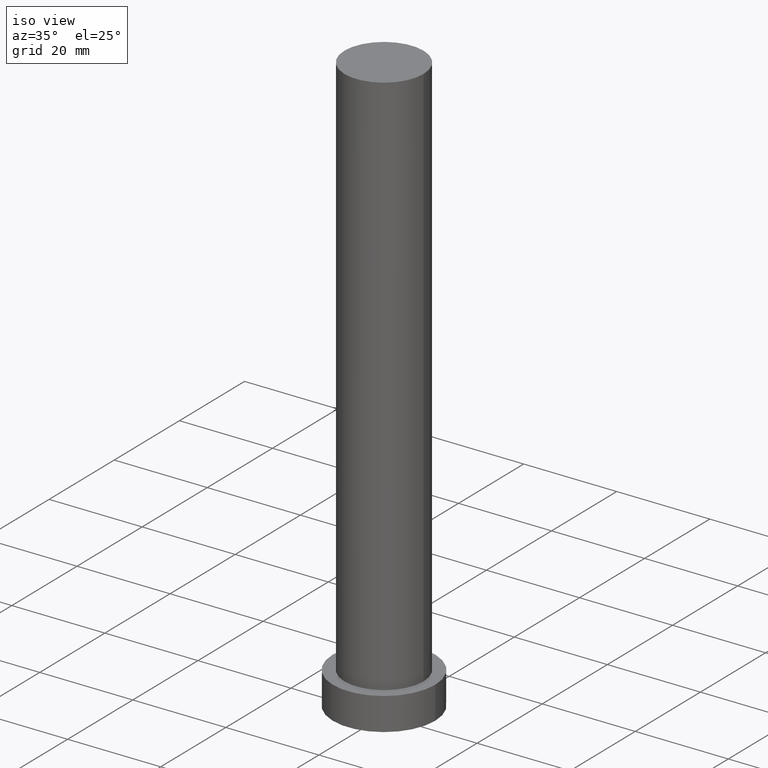
[diagram: clean part render]
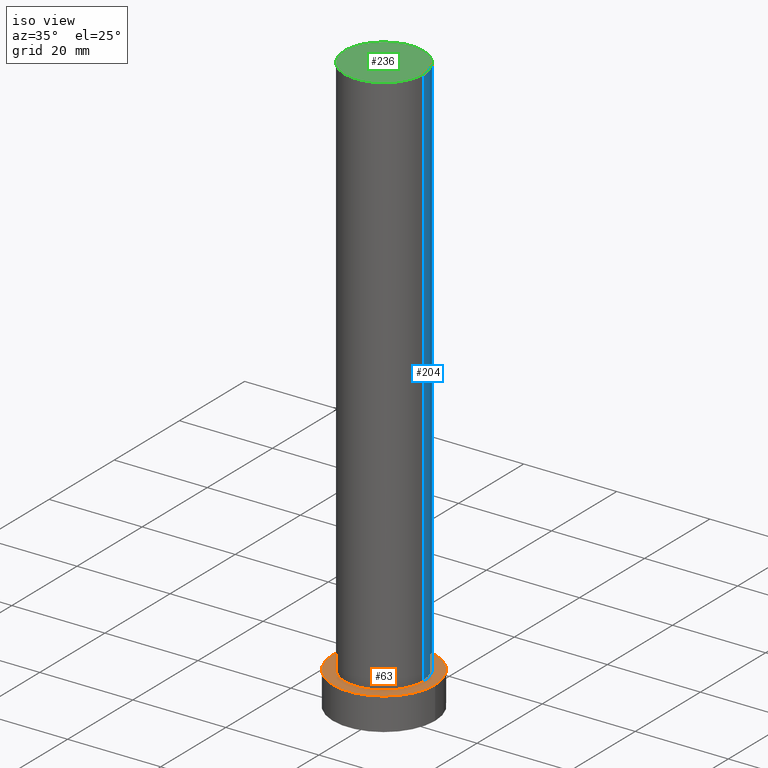
[diagram: same view with three faces highlighted in distinct colors, each labeled with its STEP entity id]
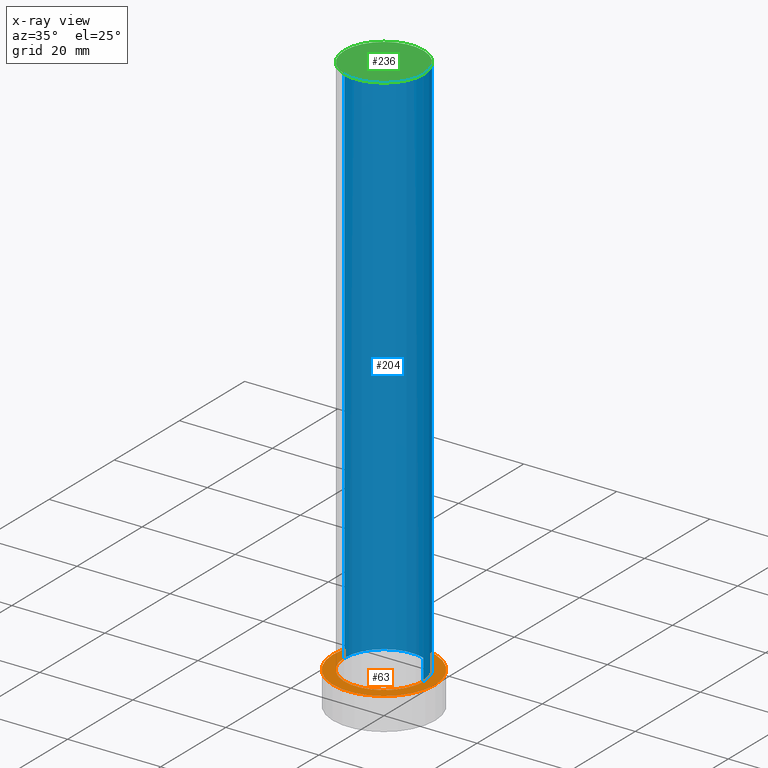
[diagram: x-ray of the same camera — body ghosted, the three highlighted faces saturated]
A machine part, iso view with three faces highlighted in distinct colors.
The next image is the same camera in x-ray (body ghosted, the three faces saturated) — at least one of them is partly hidden behind the body in this view.
Their STEP definitions:

[orange] entity #63 — the highlighted planar face has unit normal (0, 0, 1).
#1 = CARTESIAN_POINT ( 'NONE',  ( 8.500000000000000000, 1.040949779275250140E-15, 7.000000000000000000 ) ) ;
#8 = DIRECTION ( 'NONE',  ( 0.000000000000000000, 0.000000000000000000, 1.000000000000000000 ) ) ;
#23 = VERTEX_POINT ( 'NONE', #1 ) ;
#41 = DIRECTION ( 'NONE',  ( 0.000000000000000000, 0.000000000000000000, 1.000000000000000000 ) ) ;
#44 = ORIENTED_EDGE ( 'NONE', *, *, #201, .F. ) ;
#47 = CARTESIAN_POINT ( 'NONE',  ( 0.000000000000000000, 0.000000000000000000, 7.000000000000000000 ) ) ;
#54 = CIRCLE ( 'NONE', #220, 8.500000000000000000 ) ;
#56 = PLANE ( 'NONE',  #107 ) ;
#63 = ADVANCED_FACE ( 'NONE', ( #213, #93 ), #56, .T. ) ;
#66 = CIRCLE ( 'NONE', #132, 8.500000000000000000 ) ;
#68 = DIRECTION ( 'NONE',  ( 1.000000000000000000, 0.000000000000000000, 0.000000000000000000 ) ) ;
#69 = AXIS2_PLACEMENT_3D ( 'NONE', #177, #41, #251 ) ;
#70 = VERTEX_POINT ( 'NONE', #240 ) ;
#80 = VERTEX_POINT ( 'NONE', #253 ) ;
#85 = CARTESIAN_POINT ( 'NONE',  ( 0.000000000000000000, 0.000000000000000000, 7.000000000000000000 ) ) ;
#93 = FACE_OUTER_BOUND ( 'NONE', #254, .T. ) ;
#107 = AXIS2_PLACEMENT_3D ( 'NONE', #135, #217, #115 ) ;
#115 = DIRECTION ( 'NONE',  ( 1.000000000000000000, 0.000000000000000000, -0.000000000000000000 ) ) ;
#116 = CIRCLE ( 'NONE', #246, 11.00000000000000000 ) ;
#119 = EDGE_CURVE ( 'NONE', #70, #80, #128, .T. ) ;
#127 = CARTESIAN_POINT ( 'NONE',  ( 0.000000000000000000, 0.000000000000000000, 7.000000000000000000 ) ) ;
#128 = CIRCLE ( 'NONE', #69, 11.00000000000000000 ) ;
#132 = AXIS2_PLACEMENT_3D ( 'NONE', #85, #185, #68 ) ;
#135 = CARTESIAN_POINT ( 'NONE',  ( 0.000000000000000000, 0.000000000000000000, 7.000000000000000000 ) ) ;
#145 = ORIENTED_EDGE ( 'NONE', *, *, #198, .F. ) ;
#148 = DIRECTION ( 'NONE',  ( 0.000000000000000000, 0.000000000000000000, 1.000000000000000000 ) ) ;
#154 = EDGE_LOOP ( 'NONE', ( #44, #145 ) ) ;
#159 = VERTEX_POINT ( 'NONE', #167 ) ;
#167 = CARTESIAN_POINT ( 'NONE',  ( -8.500000000000000000, 0.000000000000000000, 7.000000000000000000 ) ) ;
#177 = CARTESIAN_POINT ( 'NONE',  ( 0.000000000000000000, 0.000000000000000000, 7.000000000000000000 ) ) ;
#185 = DIRECTION ( 'NONE',  ( 0.000000000000000000, 0.000000000000000000, 1.000000000000000000 ) ) ;
#195 = EDGE_CURVE ( 'NONE', #80, #70, #116, .T. ) ;
#197 = ORIENTED_EDGE ( 'NONE', *, *, #119, .T. ) ;
#198 = EDGE_CURVE ( 'NONE', #23, #159, #66, .T. ) ;
#201 = EDGE_CURVE ( 'NONE', #159, #23, #54, .T. ) ;
#213 = FACE_BOUND ( 'NONE', #154, .T. ) ;
#217 = DIRECTION ( 'NONE',  ( 0.000000000000000000, 0.000000000000000000, 1.000000000000000000 ) ) ;
#220 = AXIS2_PLACEMENT_3D ( 'NONE', #127, #148, #225 ) ;
#225 = DIRECTION ( 'NONE',  ( 1.000000000000000000, 0.000000000000000000, 0.000000000000000000 ) ) ;
#240 = CARTESIAN_POINT ( 'NONE',  ( 11.00000000000000000, 1.347111479062088405E-15, 7.000000000000000000 ) ) ;
#241 = ORIENTED_EDGE ( 'NONE', *, *, #195, .T. ) ;
#246 = AXIS2_PLACEMENT_3D ( 'NONE', #47, #8, #249 ) ;
#249 = DIRECTION ( 'NONE',  ( 1.000000000000000000, 0.000000000000000000, 0.000000000000000000 ) ) ;
#251 = DIRECTION ( 'NONE',  ( 1.000000000000000000, 0.000000000000000000, 0.000000000000000000 ) ) ;
#253 = CARTESIAN_POINT ( 'NONE',  ( -11.00000000000000000, 0.000000000000000000, 7.000000000000000000 ) ) ;
#254 = EDGE_LOOP ( 'NONE', ( #241, #197 ) ) ;

[blue] entity #204 — the highlighted cylindrical surface (partial cylindrical patch) has radius 8.5 mm, axis along (-0, -0, -1).
#1 = CARTESIAN_POINT ( 'NONE',  ( 8.500000000000000000, 1.040949779275250140E-15, 7.000000000000000000 ) ) ;
#14 = EDGE_CURVE ( 'NONE', #73, #159, #57, .T. ) ;
#20 = ORIENTED_EDGE ( 'NONE', *, *, #198, .T. ) ;
#23 = VERTEX_POINT ( 'NONE', #1 ) ;
#25 = EDGE_CURVE ( 'NONE', #42, #23, #234, .T. ) ;
#28 = CYLINDRICAL_SURFACE ( 'NONE', #211, 8.500000000000000000 ) ;
#42 = VERTEX_POINT ( 'NONE', #120 ) ;
#45 = CIRCLE ( 'NONE', #181, 8.500000000000000000 ) ;
#46 = ORIENTED_EDGE ( 'NONE', *, *, #14, .F. ) ;
#48 = DIRECTION ( 'NONE',  ( -1.000000000000000000, 0.000000000000000000, 0.000000000000000000 ) ) ;
#50 = FACE_OUTER_BOUND ( 'NONE', #208, .T. ) ;
#52 = DIRECTION ( 'NONE',  ( -0.000000000000000000, -0.000000000000000000, -1.000000000000000000 ) ) ;
#57 = LINE ( 'NONE', #156, #91 ) ;
#66 = CIRCLE ( 'NONE', #132, 8.500000000000000000 ) ;
#67 = CARTESIAN_POINT ( 'NONE',  ( 0.000000000000000000, 0.000000000000000000, 125.0000000000000000 ) ) ;
#68 = DIRECTION ( 'NONE',  ( 1.000000000000000000, 0.000000000000000000, 0.000000000000000000 ) ) ;
#73 = VERTEX_POINT ( 'NONE', #210 ) ;
#78 = DIRECTION ( 'NONE',  ( -0.000000000000000000, -0.000000000000000000, -1.000000000000000000 ) ) ;
#85 = CARTESIAN_POINT ( 'NONE',  ( 0.000000000000000000, 0.000000000000000000, 7.000000000000000000 ) ) ;
#89 = ORIENTED_EDGE ( 'NONE', *, *, #25, .T. ) ;
#91 = VECTOR ( 'NONE', #78, 1000.000000000000000 ) ;
#92 = CARTESIAN_POINT ( 'NONE',  ( 0.000000000000000000, 0.000000000000000000, 125.0000000000000000 ) ) ;
#108 = EDGE_CURVE ( 'NONE', #42, #73, #45, .T. ) ;
#120 = CARTESIAN_POINT ( 'NONE',  ( 8.500000000000000000, 1.040949779275250140E-15, 125.0000000000000000 ) ) ;
#132 = AXIS2_PLACEMENT_3D ( 'NONE', #85, #185, #68 ) ;
#139 = CARTESIAN_POINT ( 'NONE',  ( 8.500000000000000000, 1.040949779275250140E-15, 125.0000000000000000 ) ) ;
#156 = CARTESIAN_POINT ( 'NONE',  ( -8.500000000000000000, 0.000000000000000000, 125.0000000000000000 ) ) ;
#159 = VERTEX_POINT ( 'NONE', #167 ) ;
#167 = CARTESIAN_POINT ( 'NONE',  ( -8.500000000000000000, 0.000000000000000000, 7.000000000000000000 ) ) ;
#168 = VECTOR ( 'NONE', #172, 1000.000000000000000 ) ;
#171 = DIRECTION ( 'NONE',  ( 1.000000000000000000, 0.000000000000000000, 0.000000000000000000 ) ) ;
#172 = DIRECTION ( 'NONE',  ( -0.000000000000000000, -0.000000000000000000, -1.000000000000000000 ) ) ;
#181 = AXIS2_PLACEMENT_3D ( 'NONE', #92, #216, #171 ) ;
#185 = DIRECTION ( 'NONE',  ( 0.000000000000000000, 0.000000000000000000, 1.000000000000000000 ) ) ;
#198 = EDGE_CURVE ( 'NONE', #23, #159, #66, .T. ) ;
#204 = ADVANCED_FACE ( 'NONE', ( #50 ), #28, .T. ) ;
#208 = EDGE_LOOP ( 'NONE', ( #223, #89, #20, #46 ) ) ;
#210 = CARTESIAN_POINT ( 'NONE',  ( -8.500000000000000000, 0.000000000000000000, 125.0000000000000000 ) ) ;
#211 = AXIS2_PLACEMENT_3D ( 'NONE', #67, #52, #48 ) ;
#216 = DIRECTION ( 'NONE',  ( 0.000000000000000000, 0.000000000000000000, 1.000000000000000000 ) ) ;
#223 = ORIENTED_EDGE ( 'NONE', *, *, #108, .F. ) ;
#234 = LINE ( 'NONE', #139, #168 ) ;

[green] entity #236 — the highlighted planar face has unit normal (0, 0, 1).
#3 = CIRCLE ( 'NONE', #32, 8.500000000000000000 ) ;
#5 = ORIENTED_EDGE ( 'NONE', *, *, #108, .T. ) ;
#32 = AXIS2_PLACEMENT_3D ( 'NONE', #102, #62, #125 ) ;
#42 = VERTEX_POINT ( 'NONE', #120 ) ;
#45 = CIRCLE ( 'NONE', #181, 8.500000000000000000 ) ;
#58 = ORIENTED_EDGE ( 'NONE', *, *, #158, .T. ) ;
#62 = DIRECTION ( 'NONE',  ( 0.000000000000000000, 0.000000000000000000, 1.000000000000000000 ) ) ;
#73 = VERTEX_POINT ( 'NONE', #210 ) ;
#76 = EDGE_LOOP ( 'NONE', ( #58, #5 ) ) ;
#92 = CARTESIAN_POINT ( 'NONE',  ( 0.000000000000000000, 0.000000000000000000, 125.0000000000000000 ) ) ;
#102 = CARTESIAN_POINT ( 'NONE',  ( 0.000000000000000000, 0.000000000000000000, 125.0000000000000000 ) ) ;
#108 = EDGE_CURVE ( 'NONE', #42, #73, #45, .T. ) ;
#120 = CARTESIAN_POINT ( 'NONE',  ( 8.500000000000000000, 1.040949779275250140E-15, 125.0000000000000000 ) ) ;
#125 = DIRECTION ( 'NONE',  ( 1.000000000000000000, 0.000000000000000000, 0.000000000000000000 ) ) ;
#130 = PLANE ( 'NONE',  #194 ) ;
#131 = CARTESIAN_POINT ( 'NONE',  ( 0.000000000000000000, 0.000000000000000000, 125.0000000000000000 ) ) ;
#158 = EDGE_CURVE ( 'NONE', #73, #42, #3, .T. ) ;
#170 = DIRECTION ( 'NONE',  ( 1.000000000000000000, 0.000000000000000000, -0.000000000000000000 ) ) ;
#171 = DIRECTION ( 'NONE',  ( 1.000000000000000000, 0.000000000000000000, 0.000000000000000000 ) ) ;
#181 = AXIS2_PLACEMENT_3D ( 'NONE', #92, #216, #171 ) ;
#184 = FACE_OUTER_BOUND ( 'NONE', #76, .T. ) ;
#194 = AXIS2_PLACEMENT_3D ( 'NONE', #131, #203, #170 ) ;
#203 = DIRECTION ( 'NONE',  ( 0.000000000000000000, 0.000000000000000000, 1.000000000000000000 ) ) ;
#210 = CARTESIAN_POINT ( 'NONE',  ( -8.500000000000000000, 0.000000000000000000, 125.0000000000000000 ) ) ;
#216 = DIRECTION ( 'NONE',  ( 0.000000000000000000, 0.000000000000000000, 1.000000000000000000 ) ) ;
#236 = ADVANCED_FACE ( 'NONE', ( #184 ), #130, .T. ) ;